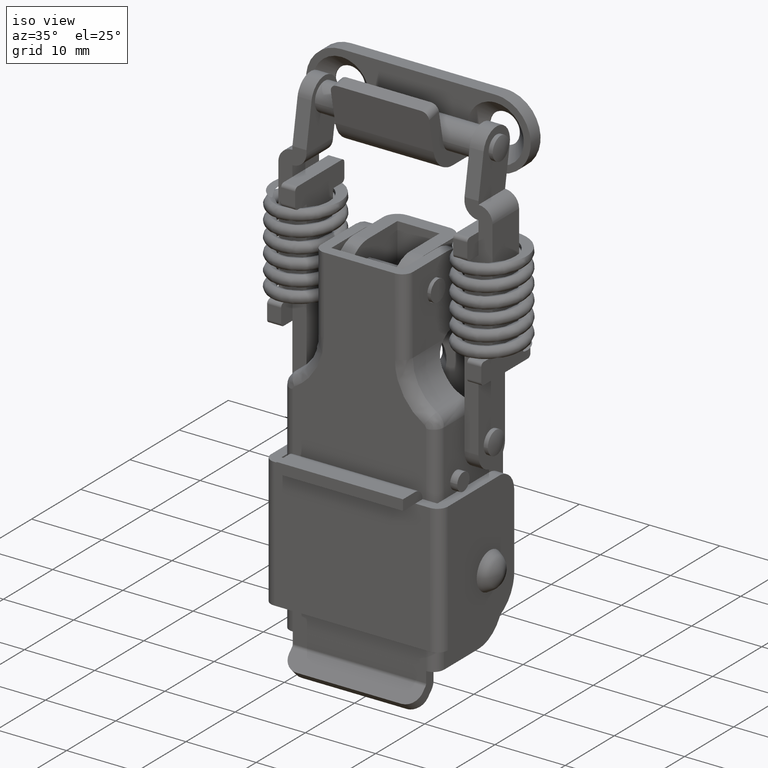
[diagram: clean part render]
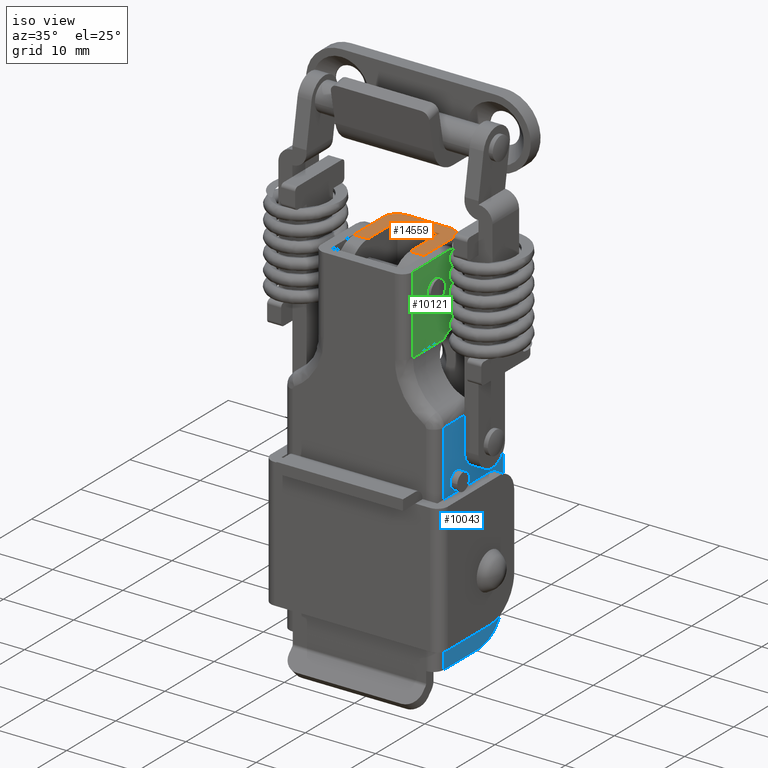
[diagram: same view with three faces highlighted in distinct colors, each labeled with its STEP entity id]
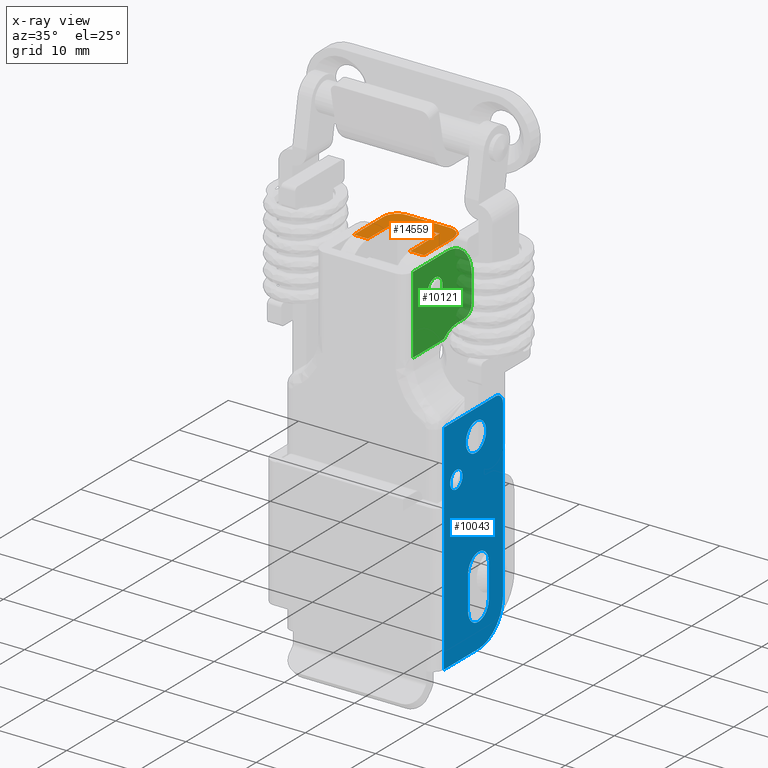
[diagram: x-ray of the same camera — body ghosted, the three highlighted faces saturated]
A machine part, iso view with three faces highlighted in distinct colors.
The next image is the same camera in x-ray (body ghosted, the three faces saturated) — at least one of them is partly hidden behind the body in this view.
Their STEP definitions:

[orange] entity #14559 — the highlighted face is a freeform B-spline surface patch.
#13198=CARTESIAN_POINT('',(-3.0,4.999999999999890,-15.0));
#13199=VERTEX_POINT('',#13198);
#13200=CARTESIAN_POINT('',(-3.0,2.999999999999890,-15.0));
#13201=VERTEX_POINT('',#13200);
#13202=CARTESIAN_POINT('',(-3.0,4.999999999999890,-15.0));
#13203=CARTESIAN_POINT('',(-3.0,2.999999999999890,-15.0));
#13204=QUASI_UNIFORM_CURVE('',1,(#13202,#13203),.UNSPECIFIED.,.F.,.U.);
#13205=EDGE_CURVE('',#13199,#13201,#13204,.T.);
#13304=CARTESIAN_POINT('',(-3.0,-5.000000000000120,-15.0));
#13305=VERTEX_POINT('',#13304);
#13321=CARTESIAN_POINT('',(-3.0,-3.000000000000115,-15.0));
#13322=VERTEX_POINT('',#13321);
#13323=CARTESIAN_POINT('',(-3.0,-3.000000000000115,-15.0));
#13324=CARTESIAN_POINT('',(-3.0,-5.000000000000120,-15.0));
#13325=QUASI_UNIFORM_CURVE('',1,(#13323,#13324),.UNSPECIFIED.,.F.,.U.);
#13326=EDGE_CURVE('',#13322,#13305,#13325,.T.);
#13594=CARTESIAN_POINT('',(5.0,-3.000000000000115,-15.0));
#13595=VERTEX_POINT('',#13594);
#13601=CARTESIAN_POINT('',(3.0,-5.000000000000110,-15.0));
#13602=VERTEX_POINT('',#13601);
#13603=CARTESIAN_POINT('',(3.0,-5.000000000000116,-15.0));
#13604=CARTESIAN_POINT('',(5.000000000000001,-5.000000000000116,-14.999999999999995));
#13605=CARTESIAN_POINT('',(5.0,-3.000000000000115,-15.0));
#13613=(BOUNDED_CURVE()B_SPLINE_CURVE(2,(#13603,#13604,#13605),.UNSPECIFIED.,.F.,.U.)CURVE()GEOMETRIC_REPRESENTATION_ITEM()QUASI_UNIFORM_CURVE()RATIONAL_B_SPLINE_CURVE((1.0,0.707106781186548,1.0))REPRESENTATION_ITEM(''));
#13614=EDGE_CURVE('',#13602,#13595,#13613,.T.);
#14306=CARTESIAN_POINT('',(5.0,2.999999999999885,-15.0));
#14307=VERTEX_POINT('',#14306);
#14342=CARTESIAN_POINT('',(3.0,4.999999999999890,-15.0));
#14343=VERTEX_POINT('',#14342);
#14349=CARTESIAN_POINT('',(5.0,2.999999999999885,-15.0));
#14350=CARTESIAN_POINT('',(5.000000000000001,4.999999999999885,-14.999999999999995));
#14351=CARTESIAN_POINT('',(3.0,4.999999999999885,-15.0));
#14359=(BOUNDED_CURVE()B_SPLINE_CURVE(2,(#14349,#14350,#14351),.UNSPECIFIED.,.F.,.U.)CURVE()GEOMETRIC_REPRESENTATION_ITEM()QUASI_UNIFORM_CURVE()RATIONAL_B_SPLINE_CURVE((1.0,0.707106781186548,1.0))REPRESENTATION_ITEM(''));
#14360=EDGE_CURVE('',#14307,#14343,#14359,.T.);
#14514=CARTESIAN_POINT('',(-3.399599984494448,-5.499499980618180,-15.0));
#14515=CARTESIAN_POINT('',(5.399600199071169,-5.499499980618180,-15.0));
#14516=CARTESIAN_POINT('',(-3.399599984494448,5.499500248838852,-15.0));
#14517=CARTESIAN_POINT('',(5.399600199071169,5.499500248838852,-15.0));
#14518=B_SPLINE_SURFACE_WITH_KNOTS('',1,1,((#14514,#14516),(#14515,#14517)),.UNSPECIFIED.,.F.,.F.,.U.,(2,2),(2,2),(0.0,8.799200183565617),(0.0,10.999000229457030),.UNSPECIFIED.);
#14519=CARTESIAN_POINT('',(3.0,4.999999999999890,-15.0));
#14520=CARTESIAN_POINT('',(-3.0,4.999999999999890,-15.0));
#14521=QUASI_UNIFORM_CURVE('',1,(#14519,#14520),.UNSPECIFIED.,.F.,.U.);
#14522=EDGE_CURVE('',#14343,#13199,#14521,.T.);
#14523=ORIENTED_EDGE('',*,*,#14522,.T.);
#14524=ORIENTED_EDGE('',*,*,#13205,.T.);
#14525=CARTESIAN_POINT('',(3.0,2.999999999999885,-15.0));
#14526=VERTEX_POINT('',#14525);
#14527=CARTESIAN_POINT('',(-3.0,2.999999999999890,-15.0));
#14528=CARTESIAN_POINT('',(3.0,2.999999999999885,-15.0));
#14529=QUASI_UNIFORM_CURVE('',1,(#14527,#14528),.UNSPECIFIED.,.F.,.U.);
#14530=EDGE_CURVE('',#13201,#14526,#14529,.T.);
#14531=ORIENTED_EDGE('',*,*,#14530,.T.);
#14532=CARTESIAN_POINT('',(3.0,-3.000000000000115,-15.0));
#14533=VERTEX_POINT('',#14532);
#14534=CARTESIAN_POINT('',(3.0,2.999999999999885,-15.0));
#14535=CARTESIAN_POINT('',(3.0,-3.000000000000115,-15.0));
#14536=QUASI_UNIFORM_CURVE('',1,(#14534,#14535),.UNSPECIFIED.,.F.,.U.);
#14537=EDGE_CURVE('',#14526,#14533,#14536,.T.);
#14538=ORIENTED_EDGE('',*,*,#14537,.T.);
#14539=CARTESIAN_POINT('',(3.0,-3.000000000000115,-15.0));
#14540=CARTESIAN_POINT('',(-3.0,-3.000000000000115,-15.0));
#14541=QUASI_UNIFORM_CURVE('',1,(#14539,#14540),.UNSPECIFIED.,.F.,.U.);
#14542=EDGE_CURVE('',#14533,#13322,#14541,.T.);
#14543=ORIENTED_EDGE('',*,*,#14542,.T.);
#14544=ORIENTED_EDGE('',*,*,#13326,.T.);
#14545=CARTESIAN_POINT('',(-3.0,-5.000000000000120,-15.0));
#14546=CARTESIAN_POINT('',(3.0,-5.000000000000110,-15.0));
#14547=QUASI_UNIFORM_CURVE('',1,(#14545,#14546),.UNSPECIFIED.,.F.,.U.);
#14548=EDGE_CURVE('',#13305,#13602,#14547,.T.);
#14549=ORIENTED_EDGE('',*,*,#14548,.T.);
#14550=ORIENTED_EDGE('',*,*,#13614,.T.);
#14551=CARTESIAN_POINT('',(5.0,-3.000000000000115,-15.0));
#14552=CARTESIAN_POINT('',(5.0,2.999999999999885,-15.0));
#14553=QUASI_UNIFORM_CURVE('',1,(#14551,#14552),.UNSPECIFIED.,.F.,.U.);
#14554=EDGE_CURVE('',#13595,#14307,#14553,.T.);
#14555=ORIENTED_EDGE('',*,*,#14554,.T.);
#14556=ORIENTED_EDGE('',*,*,#14360,.T.);
#14557=EDGE_LOOP('',(#14523,#14524,#14531,#14538,#14543,#14544,#14549,#14550,#14555,#14556));
#14558=FACE_OUTER_BOUND('',#14557,.T.);
#14559=ADVANCED_FACE('',(#14558),#14518,.T.);

[blue] entity #10043 — the highlighted face is a freeform B-spline surface patch.
#6408=CARTESIAN_POINT('',(1.043680534133902,-11.000000000000121,-37.660841146483627));
#6409=VERTEX_POINT('',#6408);
#6415=CARTESIAN_POINT('',(-1.0,-11.000000000000121,-35.450000000000003));
#6416=VERTEX_POINT('',#6415);
#6417=CARTESIAN_POINT('',(1.043680534133902,-11.000000000000123,-37.660841146483634));
#6418=CARTESIAN_POINT('',(1.050000000000000,-11.000000000000117,-37.580544719608397));
#6419=CARTESIAN_POINT('',(1.050000000000000,-11.000000000000121,-37.500000000000000));
#6420=CARTESIAN_POINT('',(1.050000000000000,-11.000000000000119,-35.450000000000003));
#6421=CARTESIAN_POINT('',(-1.0,-11.000000000000121,-35.450000000000003));
#6429=(BOUNDED_CURVE()B_SPLINE_CURVE(2,(#6417,#6418,#6419,#6420,#6421),.UNSPECIFIED.,.F.,.U.)B_SPLINE_CURVE_WITH_KNOTS((3,2,3),(0.736331300592245,0.750000000000000,1.0),.UNSPECIFIED.)CURVE()GEOMETRIC_REPRESENTATION_ITEM()RATIONAL_B_SPLINE_CURVE((0.969723356087248,0.983986122533876,1.0,0.707106781186547,1.0))REPRESENTATION_ITEM(''));
#6430=EDGE_CURVE('',#6409,#6416,#6429,.T.);
#6432=CARTESIAN_POINT('',(-3.043680534133902,-11.000000000000121,-37.339158853516373));
#6433=VERTEX_POINT('',#6432);
#6434=CARTESIAN_POINT('',(-1.0,-11.000000000000121,-35.450000000000003));
#6435=CARTESIAN_POINT('',(-2.895000507449989,-11.000000000000119,-35.449999999999996));
#6436=CARTESIAN_POINT('',(-3.043680534133902,-11.000000000000119,-37.339158853516366));
#6444=(BOUNDED_CURVE()B_SPLINE_CURVE(2,(#6434,#6435,#6436),.UNSPECIFIED.,.F.,.U.)B_SPLINE_CURVE_WITH_KNOTS((3,3),(0.0,0.236331300592245),.UNSPECIFIED.)CURVE()GEOMETRIC_REPRESENTATION_ITEM()RATIONAL_B_SPLINE_CURVE((1.0,0.723120658652672,0.969723356087248))REPRESENTATION_ITEM(''));
#6445=EDGE_CURVE('',#6416,#6433,#6444,.T.);
#6491=CARTESIAN_POINT('',(-1.0,-11.000000000000121,-39.549999999999997));
#6492=VERTEX_POINT('',#6491);
#6493=CARTESIAN_POINT('',(-3.043680534133902,-11.000000000000121,-37.339158853516359));
#6494=CARTESIAN_POINT('',(-3.050000000000001,-11.000000000000117,-37.419455280391603));
#6495=CARTESIAN_POINT('',(-3.050000000000000,-11.000000000000121,-37.500000000000000));
#6496=CARTESIAN_POINT('',(-3.050000000000001,-11.000000000000119,-39.549999999999997));
#6497=CARTESIAN_POINT('',(-1.0,-11.000000000000121,-39.549999999999997));
#6505=(BOUNDED_CURVE()B_SPLINE_CURVE(2,(#6493,#6494,#6495,#6496,#6497),.UNSPECIFIED.,.F.,.U.)B_SPLINE_CURVE_WITH_KNOTS((3,2,3),(0.236331300592245,0.250000000000000,0.500000000000000),.UNSPECIFIED.)CURVE()GEOMETRIC_REPRESENTATION_ITEM()RATIONAL_B_SPLINE_CURVE((0.969723356087248,0.983986122533876,1.0,0.707106781186547,1.0))REPRESENTATION_ITEM(''));
#6506=EDGE_CURVE('',#6433,#6492,#6505,.T.);
#6508=CARTESIAN_POINT('',(-1.0,-11.000000000000121,-39.549999999999997));
#6509=CARTESIAN_POINT('',(0.895000507449995,-11.000000000000119,-39.549999999999997));
#6510=CARTESIAN_POINT('',(1.043680534133902,-11.000000000000126,-37.660841146483641));
#6518=(BOUNDED_CURVE()B_SPLINE_CURVE(2,(#6508,#6509,#6510),.UNSPECIFIED.,.F.,.U.)B_SPLINE_CURVE_WITH_KNOTS((3,3),(0.500000000000000,0.736331300592245),.UNSPECIFIED.)CURVE()GEOMETRIC_REPRESENTATION_ITEM()RATIONAL_B_SPLINE_CURVE((1.0,0.723120658652671,0.969723356087250))REPRESENTATION_ITEM(''));
#6519=EDGE_CURVE('',#6492,#6409,#6518,.T.);
#6765=CARTESIAN_POINT('',(-6.241261907926399,-11.000000000000121,-41.352457206441940));
#6766=VERTEX_POINT('',#6765);
#6772=CARTESIAN_POINT('',(-5.0,-11.000000000000121,-42.750000000000000));
#6773=VERTEX_POINT('',#6772);
#6774=CARTESIAN_POINT('',(-6.241261907926399,-11.000000000000119,-41.352457206441940));
#6775=CARTESIAN_POINT('',(-6.250000000000000,-11.000000000000126,-41.425969850195500));
#6776=CARTESIAN_POINT('',(-6.250000000000000,-11.000000000000121,-41.500000000000000));
#6777=CARTESIAN_POINT('',(-6.250000000000000,-11.000000000000119,-42.750000000000000));
#6778=CARTESIAN_POINT('',(-5.0,-11.000000000000121,-42.750000000000000));
#6786=(BOUNDED_CURVE()B_SPLINE_CURVE(2,(#6774,#6775,#6776,#6777,#6778),.UNSPECIFIED.,.F.,.U.)B_SPLINE_CURVE_WITH_KNOTS((3,2,3),(0.229562473451078,0.250000000000000,0.500000000000000),.UNSPECIFIED.)CURVE()GEOMETRIC_REPRESENTATION_ITEM()RATIONAL_B_SPLINE_CURVE((0.956026754061333,0.976055948258003,1.0,0.707106781186548,1.0))REPRESENTATION_ITEM(''));
#6787=EDGE_CURVE('',#6766,#6773,#6786,.T.);
#6789=CARTESIAN_POINT('',(-3.752331501986824,-11.000000000000121,-41.576310674650053));
#6790=VERTEX_POINT('',#6789);
#6791=CARTESIAN_POINT('',(-5.0,-11.000000000000121,-42.750000000000000));
#6792=CARTESIAN_POINT('',(-3.824117416805008,-11.000000000000119,-42.750000000000007));
#6793=CARTESIAN_POINT('',(-3.752331501986824,-11.000000000000119,-41.576310674650045));
#6801=(BOUNDED_CURVE()B_SPLINE_CURVE(2,(#6791,#6792,#6793),.UNSPECIFIED.,.F.,.U.)B_SPLINE_CURVE_WITH_KNOTS((3,3),(0.500000000000000,0.739332962177945),.UNSPECIFIED.)CURVE()GEOMETRIC_REPRESENTATION_ITEM()RATIONAL_B_SPLINE_CURVE((1.0,0.719603993358174,0.976072041535988))REPRESENTATION_ITEM(''));
#6802=EDGE_CURVE('',#6773,#6790,#6801,.T.);
#6876=CARTESIAN_POINT('',(-5.0,-11.000000000000121,-40.250000000000000));
#6877=VERTEX_POINT('',#6876);
#6878=CARTESIAN_POINT('',(-3.752331501986824,-11.000000000000119,-41.576310674650045));
#6879=CARTESIAN_POINT('',(-3.750000000000000,-11.000000000000119,-41.538190954355358));
#6880=CARTESIAN_POINT('',(-3.750000000000000,-11.000000000000121,-41.500000000000000));
#6881=CARTESIAN_POINT('',(-3.749999999999999,-11.000000000000119,-40.250000000000000));
#6882=CARTESIAN_POINT('',(-5.0,-11.000000000000121,-40.250000000000000));
#6890=(BOUNDED_CURVE()B_SPLINE_CURVE(2,(#6878,#6879,#6880,#6881,#6882),.UNSPECIFIED.,.F.,.U.)B_SPLINE_CURVE_WITH_KNOTS((3,2,3),(0.739332962177946,0.750000000000000,1.0),.UNSPECIFIED.)CURVE()GEOMETRIC_REPRESENTATION_ITEM()RATIONAL_B_SPLINE_CURVE((0.976072041535989,0.987502787828375,1.0,0.707106781186548,1.0))REPRESENTATION_ITEM(''));
#6891=EDGE_CURVE('',#6790,#6877,#6890,.T.);
#6893=CARTESIAN_POINT('',(-5.0,-11.000000000000121,-40.250000000000000));
#6894=CARTESIAN_POINT('',(-6.110218157012075,-11.000000000000119,-40.250000000000007));
#6895=CARTESIAN_POINT('',(-6.241261907926399,-11.000000000000124,-41.352457206441947));
#6903=(BOUNDED_CURVE()B_SPLINE_CURVE(2,(#6893,#6894,#6895),.UNSPECIFIED.,.F.,.U.)B_SPLINE_CURVE_WITH_KNOTS((3,3),(0.0,0.229562473451078),.UNSPECIFIED.)CURVE()GEOMETRIC_REPRESENTATION_ITEM()RATIONAL_B_SPLINE_CURVE((1.0,0.731050832928544,0.956026754061334))REPRESENTATION_ITEM(''));
#6904=EDGE_CURVE('',#6877,#6766,#6903,.T.);
#7249=CARTESIAN_POINT('',(3.0,-11.0,-33.818503999999997));
#7250=VERTEX_POINT('',#7249);
#7256=CARTESIAN_POINT('',(4.500000000000000,-11.0,-35.318503999999997));
#7257=VERTEX_POINT('',#7256);
#7258=CARTESIAN_POINT('',(4.500000000000001,-11.0,-35.318503999999997));
#7259=CARTESIAN_POINT('',(4.500000000000002,-11.0,-33.818503999999997));
#7260=CARTESIAN_POINT('',(3.0,-11.0,-33.818503999999997));
#7268=(BOUNDED_CURVE()B_SPLINE_CURVE(2,(#7258,#7259,#7260),.UNSPECIFIED.,.F.,.U.)CURVE()GEOMETRIC_REPRESENTATION_ITEM()QUASI_UNIFORM_CURVE()RATIONAL_B_SPLINE_CURVE((1.0,0.707106781186548,1.0))REPRESENTATION_ITEM(''));
#7269=EDGE_CURVE('',#7257,#7250,#7268,.T.);
#7711=CARTESIAN_POINT('',(0.499999999999945,-11.0,-33.818503999999997));
#7712=VERTEX_POINT('',#7711);
#8030=CARTESIAN_POINT('',(3.0,-11.0,-33.818503999999997));
#8031=CARTESIAN_POINT('',(0.499999999999945,-11.0,-33.818503999999997));
#8032=QUASI_UNIFORM_CURVE('',1,(#8030,#8031),.UNSPECIFIED.,.F.,.U.);
#8033=EDGE_CURVE('',#7250,#7712,#8032,.T.);
#8155=CARTESIAN_POINT('',(-0.499999999999945,-11.0,-65.0));
#8156=VERTEX_POINT('',#8155);
#8157=CARTESIAN_POINT('',(4.500000000000000,-11.0,-60.0));
#8158=VERTEX_POINT('',#8157);
#8159=CARTESIAN_POINT('',(-0.500000000000000,-11.0,-65.0));
#8160=CARTESIAN_POINT('',(4.500000000000002,-11.0,-65.0));
#8161=CARTESIAN_POINT('',(4.500000000000001,-11.0,-60.0));
#8169=(BOUNDED_CURVE()B_SPLINE_CURVE(2,(#8159,#8160,#8161),.UNSPECIFIED.,.F.,.U.)CURVE()GEOMETRIC_REPRESENTATION_ITEM()QUASI_UNIFORM_CURVE()RATIONAL_B_SPLINE_CURVE((1.0,0.707106781186548,1.0))REPRESENTATION_ITEM(''));
#8170=EDGE_CURVE('',#8156,#8158,#8169,.T.);
#8270=CARTESIAN_POINT('',(-2.600000000000045,-11.0,-54.600000000000001));
#8271=VERTEX_POINT('',#8270);
#8277=CARTESIAN_POINT('',(-2.600000000000000,-11.000000000000121,-59.399999999999999));
#8278=VERTEX_POINT('',#8277);
#8279=CARTESIAN_POINT('',(-2.600000000000000,-11.000000000000121,-59.399999999999999));
#8280=CARTESIAN_POINT('',(-2.600000000000045,-11.0,-54.600000000000001));
#8281=QUASI_UNIFORM_CURVE('',1,(#8279,#8280),.UNSPECIFIED.,.F.,.U.);
#8282=EDGE_CURVE('',#8278,#8271,#8281,.T.);
#8334=CARTESIAN_POINT('',(1.600000000000000,-11.000000000000121,-54.600000000000001));
#8335=VERTEX_POINT('',#8334);
#8341=CARTESIAN_POINT('',(1.600000000000000,-11.000000000000121,-54.600000000000001));
#8342=CARTESIAN_POINT('',(1.600000000000000,-11.000000000000119,-52.500000000000007));
#8343=CARTESIAN_POINT('',(-0.500000000000000,-11.000000000000121,-52.500000000000007));
#8344=CARTESIAN_POINT('',(-2.600000000000001,-11.000000000000119,-52.500000000000007));
#8345=CARTESIAN_POINT('',(-2.600000000000000,-11.000000000000121,-54.600000000000001));
#8353=(BOUNDED_CURVE()B_SPLINE_CURVE(2,(#8341,#8342,#8343,#8344,#8345),.UNSPECIFIED.,.F.,.U.)B_SPLINE_CURVE_WITH_KNOTS((3,2,3),(0.0,0.500000000000000,1.0),.UNSPECIFIED.)CURVE()GEOMETRIC_REPRESENTATION_ITEM()RATIONAL_B_SPLINE_CURVE((1.0,0.707106781186548,1.0,0.707106781186548,1.0))REPRESENTATION_ITEM(''));
#8354=EDGE_CURVE('',#8335,#8271,#8353,.T.);
#8367=CARTESIAN_POINT('',(1.600000000000025,-11.000000000000121,-59.399999999999999));
#8368=VERTEX_POINT('',#8367);
#8374=CARTESIAN_POINT('',(1.600000000000000,-11.000000000000121,-54.600000000000001));
#8375=CARTESIAN_POINT('',(1.600000000000025,-11.000000000000121,-59.399999999999999));
#8376=QUASI_UNIFORM_CURVE('',1,(#8374,#8375),.UNSPECIFIED.,.F.,.U.);
#8377=EDGE_CURVE('',#8335,#8368,#8376,.T.);
#8422=CARTESIAN_POINT('',(-2.600000000000000,-11.000000000000121,-59.399999999999999));
#8423=CARTESIAN_POINT('',(-2.600000000000001,-11.000000000000119,-61.500000000000007));
#8424=CARTESIAN_POINT('',(-0.500000000000000,-11.000000000000121,-61.500000000000000));
#8425=CARTESIAN_POINT('',(1.600000000000000,-11.000000000000119,-61.500000000000007));
#8426=CARTESIAN_POINT('',(1.600000000000000,-11.000000000000121,-59.399999999999999));
#8434=(BOUNDED_CURVE()B_SPLINE_CURVE(2,(#8422,#8423,#8424,#8425,#8426),.UNSPECIFIED.,.F.,.U.)B_SPLINE_CURVE_WITH_KNOTS((3,2,3),(0.0,0.500000000000000,1.0),.UNSPECIFIED.)CURVE()GEOMETRIC_REPRESENTATION_ITEM()RATIONAL_B_SPLINE_CURVE((1.0,0.707106781186548,1.0,0.707106781186548,1.0))REPRESENTATION_ITEM(''));
#8435=EDGE_CURVE('',#8278,#8368,#8434,.T.);
#9054=CARTESIAN_POINT('',(-7.500000000000000,-11.0,-33.818503999999997));
#9055=VERTEX_POINT('',#9054);
#9195=CARTESIAN_POINT('',(-7.500000000000000,-11.0,-65.0));
#9196=VERTEX_POINT('',#9195);
#9212=CARTESIAN_POINT('',(-7.500000000000000,-11.0,-33.818503999999997));
#9213=CARTESIAN_POINT('',(-7.500000000000000,-11.0,-65.0));
#9214=QUASI_UNIFORM_CURVE('',1,(#9212,#9213),.UNSPECIFIED.,.F.,.U.);
#9215=EDGE_CURVE('',#9055,#9196,#9214,.T.);
#9766=CARTESIAN_POINT('',(0.499999999999945,-11.0,-33.818503999999997));
#9767=CARTESIAN_POINT('',(-7.500000000000000,-11.0,-33.818503999999997));
#9768=QUASI_UNIFORM_CURVE('',1,(#9766,#9767),.UNSPECIFIED.,.F.,.U.);
#9769=EDGE_CURVE('',#7712,#9055,#9768,.T.);
#9819=CARTESIAN_POINT('',(4.500000000000000,-11.0,-35.318503999999997));
#9820=CARTESIAN_POINT('',(4.500000000000000,-11.0,-60.0));
#9821=QUASI_UNIFORM_CURVE('',1,(#9819,#9820),.UNSPECIFIED.,.F.,.U.);
#9822=EDGE_CURVE('',#7257,#8158,#9821,.T.);
#9893=CARTESIAN_POINT('',(-0.499999999999945,-11.0,-65.0));
#9894=CARTESIAN_POINT('',(-7.500000000000000,-11.0,-65.0));
#9895=QUASI_UNIFORM_CURVE('',1,(#9893,#9894),.UNSPECIFIED.,.F.,.U.);
#9896=EDGE_CURVE('',#8156,#9196,#9895,.T.);
#10011=CARTESIAN_POINT('',(-8.099399976741671,-11.0,-66.557515664764210));
#10012=CARTESIAN_POINT('',(-8.099399976741671,-11.0,-32.260987498882891));
#10013=CARTESIAN_POINT('',(5.099400298606753,-11.0,-66.557515664764210));
#10014=CARTESIAN_POINT('',(5.099400298606753,-11.0,-32.260987498882891));
#10015=B_SPLINE_SURFACE_WITH_KNOTS('',1,1,((#10011,#10013),(#10012,#10014)),.UNSPECIFIED.,.F.,.F.,.U.,(2,2),(2,2),(0.0,34.296528165881320),(0.0,13.198800275348420),.UNSPECIFIED.);
#10016=ORIENTED_EDGE('',*,*,#9822,.F.);
#10017=ORIENTED_EDGE('',*,*,#7269,.T.);
#10018=ORIENTED_EDGE('',*,*,#8033,.T.);
#10019=ORIENTED_EDGE('',*,*,#9769,.T.);
#10020=ORIENTED_EDGE('',*,*,#9215,.T.);
#10021=ORIENTED_EDGE('',*,*,#9896,.F.);
#10022=ORIENTED_EDGE('',*,*,#8170,.T.);
#10023=EDGE_LOOP('',(#10016,#10017,#10018,#10019,#10020,#10021,#10022));
#10024=FACE_OUTER_BOUND('',#10023,.T.);
#10025=ORIENTED_EDGE('',*,*,#8377,.T.);
#10026=ORIENTED_EDGE('',*,*,#8435,.F.);
#10027=ORIENTED_EDGE('',*,*,#8282,.T.);
#10028=ORIENTED_EDGE('',*,*,#8354,.F.);
#10029=EDGE_LOOP('',(#10025,#10026,#10027,#10028));
#10030=FACE_BOUND('',#10029,.T.);
#10031=ORIENTED_EDGE('',*,*,#6802,.F.);
#10032=ORIENTED_EDGE('',*,*,#6787,.F.);
#10033=ORIENTED_EDGE('',*,*,#6904,.F.);
#10034=ORIENTED_EDGE('',*,*,#6891,.F.);
#10035=EDGE_LOOP('',(#10031,#10032,#10033,#10034));
#10036=FACE_BOUND('',#10035,.T.);
#10037=ORIENTED_EDGE('',*,*,#6519,.F.);
#10038=ORIENTED_EDGE('',*,*,#6506,.F.);
#10039=ORIENTED_EDGE('',*,*,#6445,.F.);
#10040=ORIENTED_EDGE('',*,*,#6430,.F.);
#10041=EDGE_LOOP('',(#10037,#10038,#10039,#10040));
#10042=FACE_BOUND('',#10041,.T.);
#10043=ADVANCED_FACE('',(#10024,#10030,#10036,#10042),#10015,.F.);

[green] entity #10121 — the highlighted face is a freeform B-spline surface patch.
#6226=CARTESIAN_POINT('',(-1.454778132725889,-6.550000000000170,-19.121611598533640));
#6227=VERTEX_POINT('',#6226);
#6233=CARTESIAN_POINT('',(-3.0,-6.550000000000170,-17.449999999999999));
#6234=VERTEX_POINT('',#6233);
#6235=CARTESIAN_POINT('',(-1.454778132725888,-6.550000000000171,-19.121611598533640));
#6236=CARTESIAN_POINT('',(-1.450000000000000,-6.550000000000170,-19.060899666018088));
#6237=CARTESIAN_POINT('',(-1.450000000000000,-6.550000000000170,-19.0));
#6238=CARTESIAN_POINT('',(-1.450000000000000,-6.550000000000170,-17.449999999999996));
#6239=CARTESIAN_POINT('',(-3.0,-6.550000000000170,-17.449999999999999));
#6247=(BOUNDED_CURVE()B_SPLINE_CURVE(2,(#6235,#6236,#6237,#6238,#6239),.UNSPECIFIED.,.F.,.U.)B_SPLINE_CURVE_WITH_KNOTS((3,2,3),(0.736331300598270,0.750000000000000,1.0),.UNSPECIFIED.)CURVE()GEOMETRIC_REPRESENTATION_ITEM()RATIONAL_B_SPLINE_CURVE((0.969723356099823,0.983986122540935,1.0,0.707106781186547,1.0))REPRESENTATION_ITEM(''));
#6248=EDGE_CURVE('',#6227,#6234,#6247,.T.);
#6250=CARTESIAN_POINT('',(-4.545221867274111,-6.550000000000170,-18.878388401466360));
#6251=VERTEX_POINT('',#6250);
#6252=CARTESIAN_POINT('',(-3.0,-6.550000000000170,-17.449999999999999));
#6253=CARTESIAN_POINT('',(-4.432805261780995,-6.550000000000171,-17.449999999999999));
#6254=CARTESIAN_POINT('',(-4.545221867274111,-6.550000000000170,-18.878388401466367));
#6262=(BOUNDED_CURVE()B_SPLINE_CURVE(2,(#6252,#6253,#6254),.UNSPECIFIED.,.F.,.U.)B_SPLINE_CURVE_WITH_KNOTS((3,3),(0.0,0.236331300598270),.UNSPECIFIED.)CURVE()GEOMETRIC_REPRESENTATION_ITEM()RATIONAL_B_SPLINE_CURVE((1.0,0.723120658645613,0.969723356099823))REPRESENTATION_ITEM(''));
#6263=EDGE_CURVE('',#6234,#6251,#6262,.T.);
#6309=CARTESIAN_POINT('',(-3.0,-6.550000000000170,-20.550000000000001));
#6310=VERTEX_POINT('',#6309);
#6311=CARTESIAN_POINT('',(-4.545221867274111,-6.550000000000170,-18.878388401466367));
#6312=CARTESIAN_POINT('',(-4.550000000000000,-6.550000000000170,-18.939100333981905));
#6313=CARTESIAN_POINT('',(-4.550000000000000,-6.550000000000170,-19.0));
#6314=CARTESIAN_POINT('',(-4.550000000000000,-6.550000000000170,-20.550000000000001));
#6315=CARTESIAN_POINT('',(-3.0,-6.550000000000170,-20.550000000000001));
#6323=(BOUNDED_CURVE()B_SPLINE_CURVE(2,(#6311,#6312,#6313,#6314,#6315),.UNSPECIFIED.,.F.,.U.)B_SPLINE_CURVE_WITH_KNOTS((3,2,3),(0.236331300598270,0.250000000000000,0.500000000000000),.UNSPECIFIED.)CURVE()GEOMETRIC_REPRESENTATION_ITEM()RATIONAL_B_SPLINE_CURVE((0.969723356099823,0.983986122540935,1.0,0.707106781186547,1.0))REPRESENTATION_ITEM(''));
#6324=EDGE_CURVE('',#6251,#6310,#6323,.T.);
#6326=CARTESIAN_POINT('',(-3.0,-6.550000000000170,-20.550000000000001));
#6327=CARTESIAN_POINT('',(-1.567194738219010,-6.550000000000170,-20.549999999999997));
#6328=CARTESIAN_POINT('',(-1.454778132725889,-6.550000000000170,-19.121611598533640));
#6336=(BOUNDED_CURVE()B_SPLINE_CURVE(2,(#6326,#6327,#6328),.UNSPECIFIED.,.F.,.U.)B_SPLINE_CURVE_WITH_KNOTS((3,3),(0.500000000000000,0.736331300598269),.UNSPECIFIED.)CURVE()GEOMETRIC_REPRESENTATION_ITEM()RATIONAL_B_SPLINE_CURVE((1.0,0.723120658645613,0.969723356099821))REPRESENTATION_ITEM(''));
#6337=EDGE_CURVE('',#6310,#6227,#6336,.T.);
#7293=CARTESIAN_POINT('',(3.0,-6.550000000000130,-25.0));
#7294=VERTEX_POINT('',#7293);
#7295=CARTESIAN_POINT('',(4.500000000000000,-6.550000000000130,-23.500000000000000));
#7296=VERTEX_POINT('',#7295);
#7297=CARTESIAN_POINT('',(3.0,-6.550000000000130,-25.0));
#7298=CARTESIAN_POINT('',(4.500000000000002,-6.550000000000130,-25.0));
#7299=CARTESIAN_POINT('',(4.500000000000001,-6.550000000000130,-23.500000000000000));
#7307=(BOUNDED_CURVE()B_SPLINE_CURVE(2,(#7297,#7298,#7299),.UNSPECIFIED.,.F.,.U.)CURVE()GEOMETRIC_REPRESENTATION_ITEM()QUASI_UNIFORM_CURVE()RATIONAL_B_SPLINE_CURVE((1.0,0.707106781186548,1.0))REPRESENTATION_ITEM(''));
#7308=EDGE_CURVE('',#7294,#7296,#7307,.T.);
#7432=CARTESIAN_POINT('',(-0.499999999999945,-6.550000000000130,-15.0));
#7433=VERTEX_POINT('',#7432);
#7439=CARTESIAN_POINT('',(4.500000000000000,-6.550000000000130,-20.0));
#7440=VERTEX_POINT('',#7439);
#7441=CARTESIAN_POINT('',(4.500000000000001,-6.550000000000130,-20.0));
#7442=CARTESIAN_POINT('',(4.500000000000002,-6.550000000000130,-14.999999999999995));
#7443=CARTESIAN_POINT('',(-0.500000000000000,-6.550000000000130,-15.0));
#7451=(BOUNDED_CURVE()B_SPLINE_CURVE(2,(#7441,#7442,#7443),.UNSPECIFIED.,.F.,.U.)CURVE()GEOMETRIC_REPRESENTATION_ITEM()QUASI_UNIFORM_CURVE()RATIONAL_B_SPLINE_CURVE((1.0,0.707106781186548,1.0))REPRESENTATION_ITEM(''));
#7452=EDGE_CURVE('',#7440,#7433,#7451,.T.);
#7812=CARTESIAN_POINT('',(1.499999999999946,-6.550000000000130,-25.0));
#7813=VERTEX_POINT('',#7812);
#7819=CARTESIAN_POINT('',(-1.205049912765266,-6.550000000000130,-26.053357000000101));
#7820=VERTEX_POINT('',#7819);
#7821=CARTESIAN_POINT('',(-1.205049912765285,-6.550000000000170,-26.053357000000080));
#7822=CARTESIAN_POINT('',(-0.057615621108105,-6.550000000000170,-25.000000000000004));
#7823=CARTESIAN_POINT('',(1.500000000000000,-6.550000000000170,-25.0));
#7831=(BOUNDED_CURVE()B_SPLINE_CURVE(2,(#7821,#7822,#7823),.UNSPECIFIED.,.F.,.U.)CURVE()GEOMETRIC_REPRESENTATION_ITEM()QUASI_UNIFORM_CURVE()RATIONAL_B_SPLINE_CURVE((1.0,0.931842462543959,1.0))REPRESENTATION_ITEM(''));
#7832=EDGE_CURVE('',#7820,#7813,#7831,.T.);
#8056=CARTESIAN_POINT('',(1.499999999999946,-6.550000000000130,-25.0));
#8057=CARTESIAN_POINT('',(3.0,-6.550000000000130,-25.0));
#8058=QUASI_UNIFORM_CURVE('',1,(#8056,#8057),.UNSPECIFIED.,.F.,.U.);
#8059=EDGE_CURVE('',#7813,#7294,#8058,.T.);
#9134=CARTESIAN_POINT('',(-7.500000000000000,-6.550000000000130,-26.053357000000101));
#9135=VERTEX_POINT('',#9134);
#9242=CARTESIAN_POINT('',(-7.500000000000000,-6.550000000000130,-15.0));
#9243=VERTEX_POINT('',#9242);
#9263=CARTESIAN_POINT('',(-7.500000000000000,-6.550000000000130,-15.0));
#9264=CARTESIAN_POINT('',(-7.500000000000000,-6.550000000000130,-26.053357000000101));
#9265=QUASI_UNIFORM_CURVE('',1,(#9263,#9264),.UNSPECIFIED.,.F.,.U.);
#9266=EDGE_CURVE('',#9243,#9135,#9265,.T.);
#9799=CARTESIAN_POINT('',(-1.205049912765266,-6.550000000000130,-26.053357000000101));
#9800=CARTESIAN_POINT('',(-7.500000000000000,-6.550000000000130,-26.053357000000101));
#9801=QUASI_UNIFORM_CURVE('',1,(#9799,#9800),.UNSPECIFIED.,.F.,.U.);
#9802=EDGE_CURVE('',#7820,#9135,#9801,.T.);
#9867=CARTESIAN_POINT('',(-0.499999999999945,-6.550000000000130,-15.0));
#9868=CARTESIAN_POINT('',(-7.500000000000000,-6.550000000000130,-15.0));
#9869=QUASI_UNIFORM_CURVE('',1,(#9867,#9868),.UNSPECIFIED.,.F.,.U.);
#9870=EDGE_CURVE('',#7433,#9243,#9869,.T.);
#10096=CARTESIAN_POINT('',(-8.099399976741671,-6.550000000000130,-26.605471330638512));
#10097=CARTESIAN_POINT('',(-8.099399976741671,-6.550000000000130,-14.447884582289760));
#10098=CARTESIAN_POINT('',(5.099400298606753,-6.550000000000130,-26.605471330638512));
#10099=CARTESIAN_POINT('',(5.099400298606753,-6.550000000000130,-14.447884582289760));
#10100=B_SPLINE_SURFACE_WITH_KNOTS('',1,1,((#10096,#10098),(#10097,#10099)),.UNSPECIFIED.,.F.,.F.,.U.,(2,2),(2,2),(0.0,12.157586748348740),(0.0,13.198800275348420),.UNSPECIFIED.);
#10101=ORIENTED_EDGE('',*,*,#8059,.T.);
#10102=ORIENTED_EDGE('',*,*,#7308,.T.);
#10103=CARTESIAN_POINT('',(4.500000000000000,-6.550000000000130,-20.0));
#10104=CARTESIAN_POINT('',(4.500000000000000,-6.550000000000130,-23.500000000000000));
#10105=QUASI_UNIFORM_CURVE('',1,(#10103,#10104),.UNSPECIFIED.,.F.,.U.);
#10106=EDGE_CURVE('',#7440,#7296,#10105,.T.);
#10107=ORIENTED_EDGE('',*,*,#10106,.F.);
#10108=ORIENTED_EDGE('',*,*,#7452,.T.);
#10109=ORIENTED_EDGE('',*,*,#9870,.T.);
#10110=ORIENTED_EDGE('',*,*,#9266,.T.);
#10111=ORIENTED_EDGE('',*,*,#9802,.F.);
#10112=ORIENTED_EDGE('',*,*,#7832,.T.);
#10113=EDGE_LOOP('',(#10101,#10102,#10107,#10108,#10109,#10110,#10111,#10112));
#10114=FACE_OUTER_BOUND('',#10113,.T.);
#10115=ORIENTED_EDGE('',*,*,#6337,.F.);
#10116=ORIENTED_EDGE('',*,*,#6324,.F.);
#10117=ORIENTED_EDGE('',*,*,#6263,.F.);
#10118=ORIENTED_EDGE('',*,*,#6248,.F.);
#10119=EDGE_LOOP('',(#10115,#10116,#10117,#10118));
#10120=FACE_BOUND('',#10119,.T.);
#10121=ADVANCED_FACE('',(#10114,#10120),#10100,.F.);